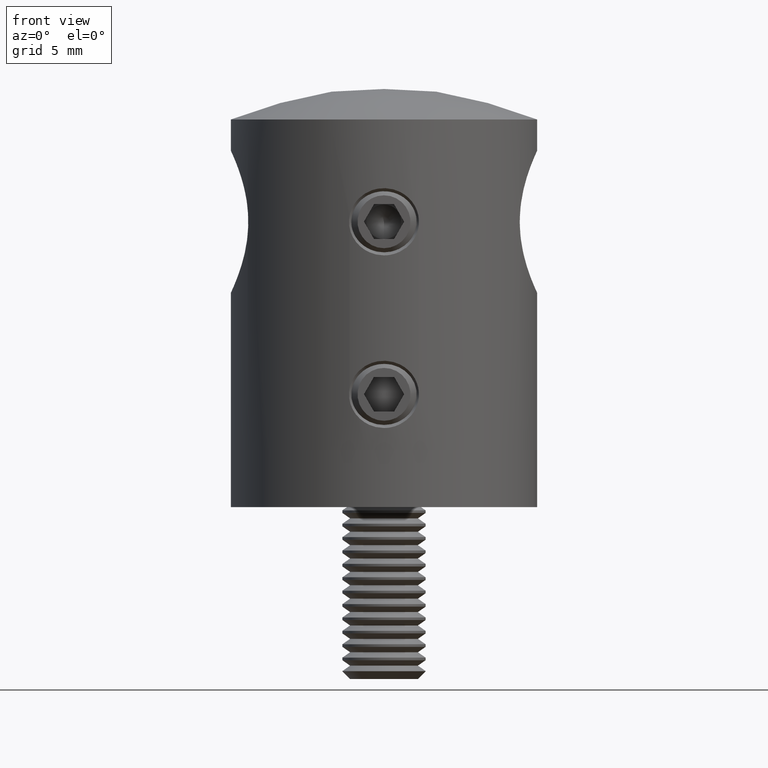
[diagram: clean part render]
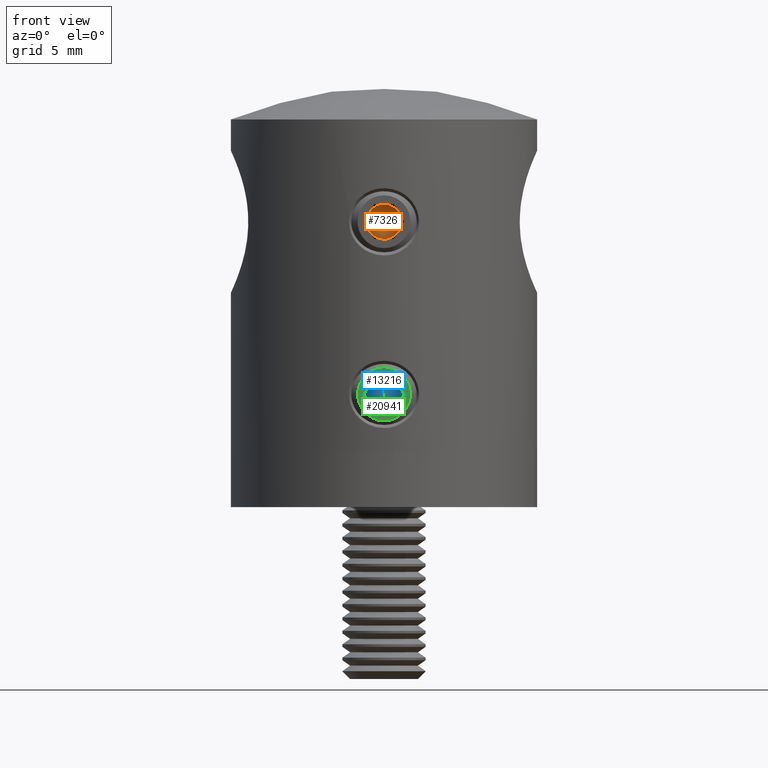
[diagram: same view with three faces highlighted in distinct colors, each labeled with its STEP entity id]
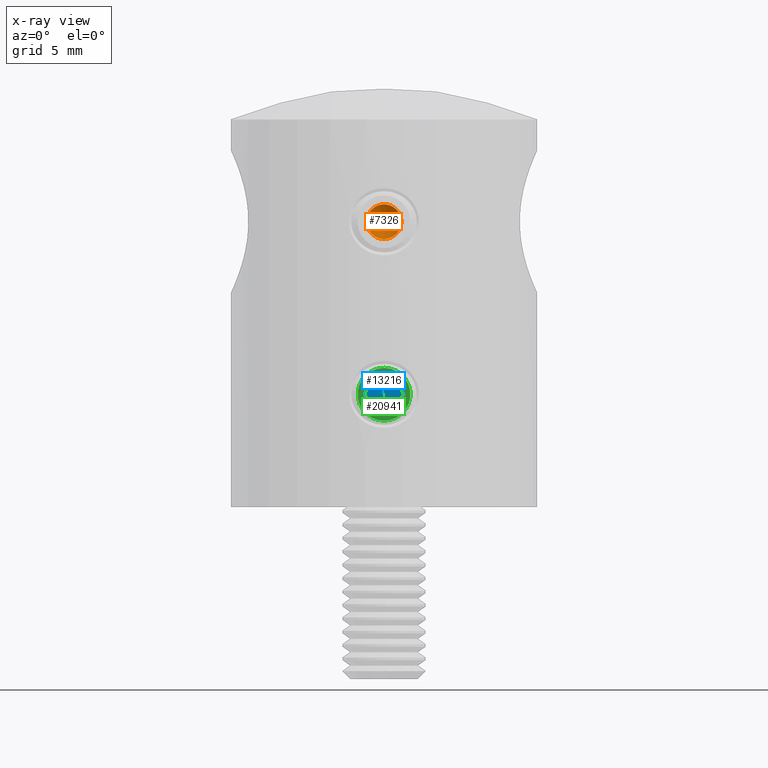
[diagram: x-ray of the same camera — body ghosted, the three highlighted faces saturated]
A machine part, front view with three faces highlighted in distinct colors.
The next image is the same camera in x-ray (body ghosted, the three faces saturated) — at least one of them is partly hidden behind the body in this view.
Their STEP definitions:

[orange] entity #7326 — the highlighted conical surface has half-angle 59 deg.
#163 = CARTESIAN_POINT ( 'NONE',  ( 2.000000000000001300, 1.082531754730552600, 0.6250000000000085500 ) ) ;
#1061 = DIRECTION ( 'NONE',  ( -1.000000000000000000, -0.0000000000000000000, 0.0000000000000000000 ) ) ;
#1481 = DIRECTION ( 'NONE',  ( 3.469446951953599400E-016, 0.0000000000000000000, -1.000000000000000000 ) ) ;
#2558 = VERTEX_POINT ( 'NONE', #17989 ) ;
#2794 = DIRECTION ( 'NONE',  ( 0.0000000000000000000, 0.0000000000000000000, 1.000000000000000000 ) ) ;
#2863 = CIRCLE ( 'NONE', #22153, 1.250000000000002900 ) ;
#2876 = VERTEX_POINT ( 'NONE', #10715 ) ;
#2892 = FACE_OUTER_BOUND ( 'NONE', #6804, .T. ) ;
#2903 = CIRCLE ( 'NONE', #18786, 1.250000000000005300 ) ;
#3021 = CIRCLE ( 'NONE', #13983, 1.250000000000002900 ) ;
#3118 = CIRCLE ( 'NONE', #18664, 1.250000000000002900 ) ;
#3502 = DIRECTION ( 'NONE',  ( 1.000000000000000000, -0.0000000000000000000, 2.180260461768213300E-016 ) ) ;
#3589 = CIRCLE ( 'NONE', #20372, 1.250000000000002900 ) ;
#4008 = ORIENTED_EDGE ( 'NONE', *, *, #17936, .F. ) ;
#4720 = VERTEX_POINT ( 'NONE', #17199 ) ;
#6139 = DIRECTION ( 'NONE',  ( -1.000000000000000000, -0.0000000000000000000, 0.0000000000000000000 ) ) ;
#6143 = DIRECTION ( 'NONE',  ( -1.000000000000000000, -0.0000000000000000000, 0.0000000000000000000 ) ) ;
#6804 = EDGE_LOOP ( 'NONE', ( #21039, #21059, #12943, #19356, #20396, #4008 ) ) ;
#7286 = DIRECTION ( 'NONE',  ( -1.000000000000000000, -0.0000000000000000000, 0.0000000000000000000 ) ) ;
#7326 = ADVANCED_FACE ( 'NONE', ( #2892 ), #18047, .F. ) ;
#9071 = DIRECTION ( 'NONE',  ( 0.0000000000000000000, 0.0000000000000000000, 1.000000000000000000 ) ) ;
#9663 = VERTEX_POINT ( 'NONE', #20101 ) ;
#10715 = CARTESIAN_POINT ( 'NONE',  ( 2.000000000000001300, -1.082531754730553300, -0.6249999999999958900 ) ) ;
#11058 = AXIS2_PLACEMENT_3D ( 'NONE', #22273, #22132, #1481 ) ;
#12172 = CARTESIAN_POINT ( 'NONE',  ( 2.000000000000000000, 0.0000000000000000000, 6.209410300080172700E-015 ) ) ;
#12355 = CARTESIAN_POINT ( 'NONE',  ( 2.000000000000001300, 0.0000000000000000000, 5.755839955992561400E-015 ) ) ;
#12943 = ORIENTED_EDGE ( 'NONE', *, *, #21185, .F. ) ;
#13522 = EDGE_CURVE ( 'NONE', #2876, #19613, #3589, .T. ) ;
#13983 = AXIS2_PLACEMENT_3D ( 'NONE', #18077, #6143, #21722 ) ;
#14651 = CARTESIAN_POINT ( 'NONE',  ( 2.000000000000001300, -1.082531754730552600, 0.6250000000000086600 ) ) ;
#16503 = EDGE_CURVE ( 'NONE', #18646, #9663, #3021, .T. ) ;
#16506 = CARTESIAN_POINT ( 'NONE',  ( 2.000000000000000000, 0.0000000000000000000, 6.209410300080172700E-015 ) ) ;
#17199 = CARTESIAN_POINT ( 'NONE',  ( 2.000000000000000000, 0.0000000000000000000, 1.250000000000000200 ) ) ;
#17304 = DIRECTION ( 'NONE',  ( 0.0000000000000000000, 0.0000000000000000000, 1.000000000000000000 ) ) ;
#17633 = AXIS2_PLACEMENT_3D ( 'NONE', #20965, #7286, #9071 ) ;
#17936 = EDGE_CURVE ( 'NONE', #2558, #2876, #21542, .T. ) ;
#17989 = CARTESIAN_POINT ( 'NONE',  ( 2.000000000000001800, 3.755786496842908900E-016, -1.249999999999999300 ) ) ;
#18047 = CONICAL_SURFACE ( 'NONE', #11058, 1.250000000000005300, 1.029744258676652800 ) ;
#18077 = CARTESIAN_POINT ( 'NONE',  ( 2.000000000000000000, 0.0000000000000000000, 6.209410300080172700E-015 ) ) ;
#18220 = DIRECTION ( 'NONE',  ( 0.0000000000000000000, 0.0000000000000000000, 1.000000000000000000 ) ) ;
#18599 = EDGE_CURVE ( 'NONE', #2558, #9663, #2903, .T. ) ;
#18646 = VERTEX_POINT ( 'NONE', #163 ) ;
#18664 = AXIS2_PLACEMENT_3D ( 'NONE', #16506, #6139, #18220 ) ;
#18786 = AXIS2_PLACEMENT_3D ( 'NONE', #12355, #3502, #21049 ) ;
#19356 = ORIENTED_EDGE ( 'NONE', *, *, #20963, .F. ) ;
#19613 = VERTEX_POINT ( 'NONE', #14651 ) ;
#20101 = CARTESIAN_POINT ( 'NONE',  ( 2.000000000000001300, 1.082531754730553100, -0.6249999999999965600 ) ) ;
#20120 = CARTESIAN_POINT ( 'NONE',  ( 2.000000000000000000, 0.0000000000000000000, 6.209410300080172700E-015 ) ) ;
#20372 = AXIS2_PLACEMENT_3D ( 'NONE', #20120, #1061, #2794 ) ;
#20396 = ORIENTED_EDGE ( 'NONE', *, *, #13522, .F. ) ;
#20963 = EDGE_CURVE ( 'NONE', #19613, #4720, #3118, .T. ) ;
#20965 = CARTESIAN_POINT ( 'NONE',  ( 2.000000000000000000, 0.0000000000000000000, 6.209410300080172700E-015 ) ) ;
#21039 = ORIENTED_EDGE ( 'NONE', *, *, #18599, .T. ) ;
#21049 = DIRECTION ( 'NONE',  ( 3.469446951953599400E-016, 0.0000000000000000000, -1.000000000000000000 ) ) ;
#21059 = ORIENTED_EDGE ( 'NONE', *, *, #16503, .F. ) ;
#21185 = EDGE_CURVE ( 'NONE', #4720, #18646, #2863, .T. ) ;
#21542 = CIRCLE ( 'NONE', #17633, 1.250000000000002900 ) ;
#21722 = DIRECTION ( 'NONE',  ( 0.0000000000000000000, 0.0000000000000000000, 1.000000000000000000 ) ) ;
#22132 = DIRECTION ( 'NONE',  ( 1.000000000000000000, -0.0000000000000000000, 2.180260461768213300E-016 ) ) ;
#22153 = AXIS2_PLACEMENT_3D ( 'NONE', #12172, #22448, #17304 ) ;
#22273 = CARTESIAN_POINT ( 'NONE',  ( 2.000000000000001300, 0.0000000000000000000, 5.755839955992561400E-015 ) ) ;
#22448 = DIRECTION ( 'NONE',  ( -1.000000000000000000, -0.0000000000000000000, 0.0000000000000000000 ) ) ;

[blue] entity #13216 — the highlighted planar face has unit normal (0, -1, 0).
#144 = EDGE_CURVE ( 'NONE', #2381, #14823, #12249, .T. ) ;
#279 = EDGE_CURVE ( 'NONE', #2587, #787, #14634, .T. ) ;
#437 = EDGE_LOOP ( 'NONE', ( #3344, #3264, #5037, #9090, #7842, #21831 ) ) ;
#607 = FACE_OUTER_BOUND ( 'NONE', #437, .T. ) ;
#787 = VERTEX_POINT ( 'NONE', #20333 ) ;
#1255 = VERTEX_POINT ( 'NONE', #10580 ) ;
#2381 = VERTEX_POINT ( 'NONE', #9285 ) ;
#2461 = VECTOR ( 'NONE', #21946, 1000.000000000000000 ) ;
#2587 = VERTEX_POINT ( 'NONE', #14578 ) ;
#2590 = VECTOR ( 'NONE', #11548, 1000.000000000000100 ) ;
#3264 = ORIENTED_EDGE ( 'NONE', *, *, #144, .T. ) ;
#3344 = ORIENTED_EDGE ( 'NONE', *, *, #20254, .T. ) ;
#4395 = LINE ( 'NONE', #22143, #11982 ) ;
#5037 = ORIENTED_EDGE ( 'NONE', *, *, #12262, .T. ) ;
#5644 = DIRECTION ( 'NONE',  ( 0.0000000000000000000, 1.000000000000000000, 0.0000000000000000000 ) ) ;
#6369 = CARTESIAN_POINT ( 'NONE',  ( 3.000000000000000000, 0.7216878364870326100, 1.250000000000000000 ) ) ;
#6611 = CARTESIAN_POINT ( 'NONE',  ( 3.000000000000000000, -0.7216878364870318300, 1.250000000000000000 ) ) ;
#7012 = CARTESIAN_POINT ( 'NONE',  ( 3.000000000000000000, 1.443375672974064800, -2.114391246060425900E-016 ) ) ;
#7200 = DIRECTION ( 'NONE',  ( 1.000000000000000000, -0.0000000000000000000, 0.0000000000000000000 ) ) ;
#7389 = CARTESIAN_POINT ( 'NONE',  ( 3.000000000000000000, -0.7216878364870333900, -1.249999999999999800 ) ) ;
#7734 = DIRECTION ( 'NONE',  ( 0.0000000000000000000, 0.4999999999999996100, -0.8660254037844388200 ) ) ;
#7842 = ORIENTED_EDGE ( 'NONE', *, *, #15657, .T. ) ;
#8844 = CARTESIAN_POINT ( 'NONE',  ( 3.000000000000000000, -2.165063509461096400, -1.249999999999999800 ) ) ;
#9090 = ORIENTED_EDGE ( 'NONE', *, *, #14351, .T. ) ;
#9285 = CARTESIAN_POINT ( 'NONE',  ( 3.000000000000000000, -1.443375672974064500, -3.918605484130491800E-016 ) ) ;
#10580 = CARTESIAN_POINT ( 'NONE',  ( 3.000000000000000000, 1.443375672974064800, -2.114391246060425900E-016 ) ) ;
#11419 = LINE ( 'NONE', #7012, #18954 ) ;
#11548 = DIRECTION ( 'NONE',  ( 0.0000000000000000000, -0.5000000000000001100, -0.8660254037844386000 ) ) ;
#11749 = VECTOR ( 'NONE', #5644, 1000.000000000000000 ) ;
#11827 = LINE ( 'NONE', #6611, #2590 ) ;
#11982 = VECTOR ( 'NONE', #15326, 1000.000000000000000 ) ;
#12249 = LINE ( 'NONE', #17997, #18171 ) ;
#12262 = EDGE_CURVE ( 'NONE', #14823, #19747, #12537, .T. ) ;
#12537 = LINE ( 'NONE', #7389, #11749 ) ;
#13216 = ADVANCED_FACE ( 'NONE', ( #607 ), #15960, .T. ) ;
#14351 = EDGE_CURVE ( 'NONE', #19747, #1255, #4395, .T. ) ;
#14554 = AXIS2_PLACEMENT_3D ( 'NONE', #8844, #7200, #19282 ) ;
#14578 = CARTESIAN_POINT ( 'NONE',  ( 3.000000000000000000, 0.7216878364870326100, 1.250000000000000000 ) ) ;
#14634 = LINE ( 'NONE', #6369, #2461 ) ;
#14823 = VERTEX_POINT ( 'NONE', #21243 ) ;
#14884 = CARTESIAN_POINT ( 'NONE',  ( 3.000000000000000000, 0.7216878364870326100, -1.249999999999999800 ) ) ;
#15326 = DIRECTION ( 'NONE',  ( 0.0000000000000000000, 0.5000000000000001100, 0.8660254037844386000 ) ) ;
#15657 = EDGE_CURVE ( 'NONE', #1255, #2587, #11419, .T. ) ;
#15960 = PLANE ( 'NONE',  #14554 ) ;
#17997 = CARTESIAN_POINT ( 'NONE',  ( 3.000000000000000000, -1.443375672974064500, -3.918605484130491800E-016 ) ) ;
#18171 = VECTOR ( 'NONE', #7734, 1000.000000000000100 ) ;
#18954 = VECTOR ( 'NONE', #19095, 1000.000000000000100 ) ;
#19095 = DIRECTION ( 'NONE',  ( 0.0000000000000000000, -0.4999999999999998900, 0.8660254037844387100 ) ) ;
#19282 = DIRECTION ( 'NONE',  ( 0.0000000000000000000, 0.0000000000000000000, -1.000000000000000000 ) ) ;
#19747 = VERTEX_POINT ( 'NONE', #14884 ) ;
#20254 = EDGE_CURVE ( 'NONE', #787, #2381, #11827, .T. ) ;
#20333 = CARTESIAN_POINT ( 'NONE',  ( 3.000000000000000000, -0.7216878364870318300, 1.250000000000000000 ) ) ;
#21243 = CARTESIAN_POINT ( 'NONE',  ( 3.000000000000000000, -0.7216878364870333900, -1.249999999999999800 ) ) ;
#21831 = ORIENTED_EDGE ( 'NONE', *, *, #279, .T. ) ;
#21946 = DIRECTION ( 'NONE',  ( 0.0000000000000000000, -1.000000000000000000, 0.0000000000000000000 ) ) ;
#22143 = CARTESIAN_POINT ( 'NONE',  ( 3.000000000000000000, 0.7216878364870326100, -1.249999999999999800 ) ) ;

[green] entity #20941 — the highlighted planar face has unit normal (0, -1, 0).
#205 = CARTESIAN_POINT ( 'NONE',  ( 6.000000000000000000, 1.443375672974064800, -2.774817153268599200E-017 ) ) ;
#316 = ORIENTED_EDGE ( 'NONE', *, *, #8654, .F. ) ;
#1526 = LINE ( 'NONE', #20989, #20225 ) ;
#2544 = VERTEX_POINT ( 'NONE', #9196 ) ;
#2630 = VERTEX_POINT ( 'NONE', #11044 ) ;
#3401 = CARTESIAN_POINT ( 'NONE',  ( 6.000000000000000000, -1.443375672974064500, -2.081695953396925700E-016 ) ) ;
#3508 = ORIENTED_EDGE ( 'NONE', *, *, #6789, .F. ) ;
#4091 = EDGE_LOOP ( 'NONE', ( #7298 ) ) ;
#4265 = CIRCLE ( 'NONE', #10753, 1.900000000000000100 ) ;
#4737 = LINE ( 'NONE', #7860, #17979 ) ;
#4822 = VERTEX_POINT ( 'NONE', #19912 ) ;
#4834 = DIRECTION ( 'NONE',  ( 0.0000000000000000000, -1.000000000000000000, 0.0000000000000000000 ) ) ;
#5281 = VERTEX_POINT ( 'NONE', #17813 ) ;
#5456 = LINE ( 'NONE', #15801, #17355 ) ;
#6063 = PLANE ( 'NONE',  #19086 ) ;
#6291 = DIRECTION ( 'NONE',  ( 1.000000000000000000, 0.0000000000000000000, 0.0000000000000000000 ) ) ;
#6522 = ORIENTED_EDGE ( 'NONE', *, *, #12570, .F. ) ;
#6713 = VECTOR ( 'NONE', #4834, 1000.000000000000000 ) ;
#6789 = EDGE_CURVE ( 'NONE', #5281, #13758, #9937, .T. ) ;
#7298 = ORIENTED_EDGE ( 'NONE', *, *, #7455, .T. ) ;
#7455 = EDGE_CURVE ( 'NONE', #2544, #2544, #4265, .T. ) ;
#7456 = DIRECTION ( 'NONE',  ( 0.0000000000000000000, 0.0000000000000000000, -1.000000000000000000 ) ) ;
#7738 = FACE_OUTER_BOUND ( 'NONE', #4091, .T. ) ;
#7799 = CARTESIAN_POINT ( 'NONE',  ( 6.000000000000000000, 0.0000000000000000000, 0.0000000000000000000 ) ) ;
#7860 = CARTESIAN_POINT ( 'NONE',  ( 6.000000000000000000, -0.7216878364870318300, 1.250000000000000200 ) ) ;
#8231 = CARTESIAN_POINT ( 'NONE',  ( 6.000000000000000000, -0.7216878364870318300, 1.250000000000000200 ) ) ;
#8531 = DIRECTION ( 'NONE',  ( 0.0000000000000000000, 0.4999999999999996100, -0.8660254037844388200 ) ) ;
#8648 = DIRECTION ( 'NONE',  ( 0.0000000000000000000, -0.4999999999999998900, 0.8660254037844387100 ) ) ;
#8654 = EDGE_CURVE ( 'NONE', #22393, #5281, #1526, .T. ) ;
#9196 = CARTESIAN_POINT ( 'NONE',  ( 6.000000000000000000, 0.0000000000000000000, -1.900000000000000100 ) ) ;
#9290 = LINE ( 'NONE', #22049, #19283 ) ;
#9516 = VECTOR ( 'NONE', #8531, 1000.000000000000100 ) ;
#9671 = ORIENTED_EDGE ( 'NONE', *, *, #14870, .F. ) ;
#9688 = DIRECTION ( 'NONE',  ( 0.0000000000000000000, 0.0000000000000000000, -1.000000000000000000 ) ) ;
#9937 = LINE ( 'NONE', #22218, #6713 ) ;
#10753 = AXIS2_PLACEMENT_3D ( 'NONE', #19536, #14387, #7456 ) ;
#11044 = CARTESIAN_POINT ( 'NONE',  ( 6.000000000000000000, -0.7216878364870333900, -1.249999999999999600 ) ) ;
#12570 = EDGE_CURVE ( 'NONE', #2630, #4822, #9290, .T. ) ;
#12611 = CARTESIAN_POINT ( 'NONE',  ( 6.000000000000000000, -1.443375672974064500, -1.084202172485504400E-016 ) ) ;
#13203 = DIRECTION ( 'NONE',  ( 0.0000000000000000000, 1.000000000000000000, 0.0000000000000000000 ) ) ;
#13758 = VERTEX_POINT ( 'NONE', #8231 ) ;
#14387 = DIRECTION ( 'NONE',  ( 1.000000000000000000, 0.0000000000000000000, 0.0000000000000000000 ) ) ;
#14645 = LINE ( 'NONE', #3401, #9516 ) ;
#14870 = EDGE_CURVE ( 'NONE', #4822, #22393, #5456, .T. ) ;
#15409 = DIRECTION ( 'NONE',  ( 0.0000000000000000000, -0.5000000000000001100, -0.8660254037844386000 ) ) ;
#15801 = CARTESIAN_POINT ( 'NONE',  ( 6.000000000000000000, 0.7216878364870326100, -1.249999999999999600 ) ) ;
#16732 = EDGE_CURVE ( 'NONE', #16939, #2630, #14645, .T. ) ;
#16939 = VERTEX_POINT ( 'NONE', #12611 ) ;
#17355 = VECTOR ( 'NONE', #19275, 1000.000000000000000 ) ;
#17813 = CARTESIAN_POINT ( 'NONE',  ( 6.000000000000000000, 0.7216878364870326100, 1.250000000000000200 ) ) ;
#17979 = VECTOR ( 'NONE', #15409, 1000.000000000000100 ) ;
#19086 = AXIS2_PLACEMENT_3D ( 'NONE', #7799, #6291, #9688 ) ;
#19275 = DIRECTION ( 'NONE',  ( 0.0000000000000000000, 0.5000000000000001100, 0.8660254037844386000 ) ) ;
#19283 = VECTOR ( 'NONE', #13203, 1000.000000000000000 ) ;
#19536 = CARTESIAN_POINT ( 'NONE',  ( 6.000000000000000000, 0.0000000000000000000, 0.0000000000000000000 ) ) ;
#19912 = CARTESIAN_POINT ( 'NONE',  ( 6.000000000000000000, 0.7216878364870326100, -1.249999999999999600 ) ) ;
#20225 = VECTOR ( 'NONE', #8648, 1000.000000000000100 ) ;
#20301 = ORIENTED_EDGE ( 'NONE', *, *, #22005, .F. ) ;
#20941 = ADVANCED_FACE ( 'NONE', ( #20982, #7738 ), #6063, .T. ) ;
#20982 = FACE_BOUND ( 'NONE', #21350, .T. ) ;
#20989 = CARTESIAN_POINT ( 'NONE',  ( 6.000000000000000000, 1.443375672974064800, -2.774817153268599200E-017 ) ) ;
#21350 = EDGE_LOOP ( 'NONE', ( #20301, #3508, #316, #9671, #6522, #21464 ) ) ;
#21464 = ORIENTED_EDGE ( 'NONE', *, *, #16732, .F. ) ;
#22005 = EDGE_CURVE ( 'NONE', #13758, #16939, #4737, .T. ) ;
#22049 = CARTESIAN_POINT ( 'NONE',  ( 6.000000000000000000, -0.7216878364870333900, -1.249999999999999600 ) ) ;
#22218 = CARTESIAN_POINT ( 'NONE',  ( 6.000000000000000000, 0.7216878364870326100, 1.250000000000000200 ) ) ;
#22393 = VERTEX_POINT ( 'NONE', #205 ) ;